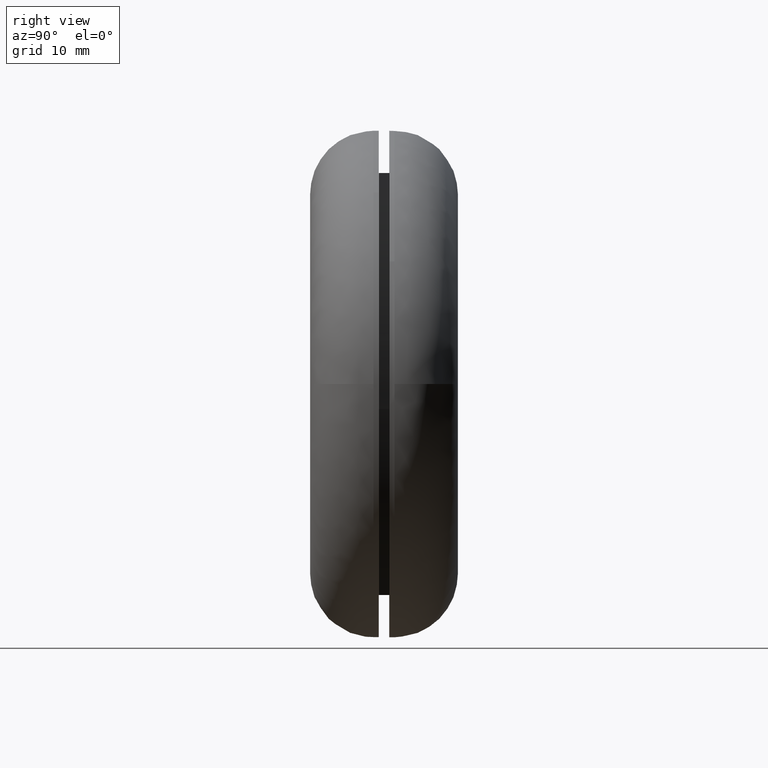
[diagram: clean part render]
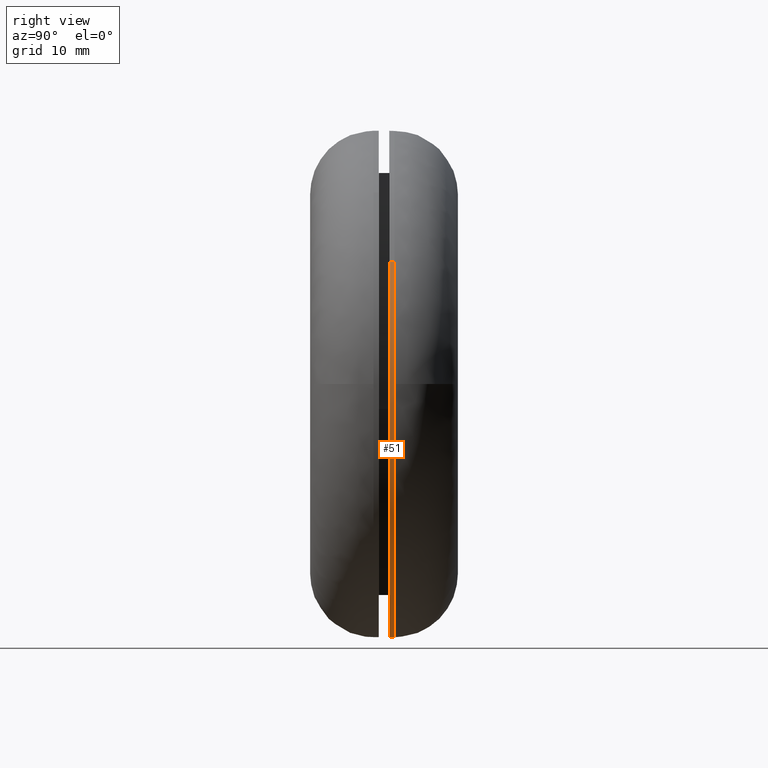
[diagram: same view with one face highlighted and labeled with its STEP entity id]
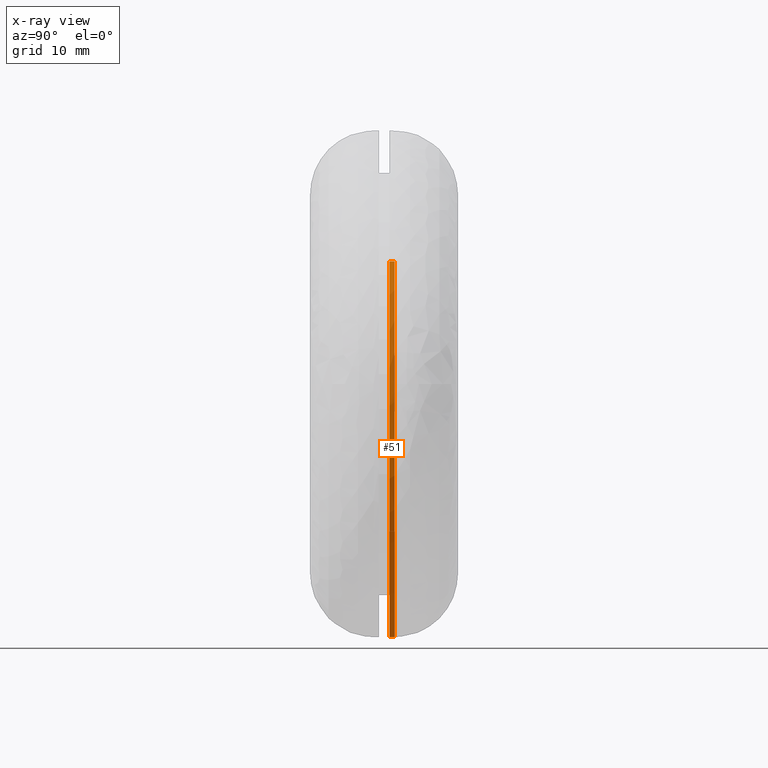
[diagram: x-ray of the same camera — body ghosted, the highlighted face saturated]
A machine part, right view. The second image highlights one B-rep face of the part: STEP entity #51.
The next image is the same camera in x-ray: the body ghosted, the highlighted face saturated — about 0% of this face is hidden behind the body in this view.
In plain terms, the highlighted cylindrical surface (partial cylindrical patch) has radius 24 mm, axis along (-0, 1, 0).
Its self-contained STEP definition (entity closure, byte-faithful):
#51=ADVANCED_FACE('',(#171),#170,.T.);
#170=CYLINDRICAL_SURFACE('',#282,2.40000000000E+001);
#171=FACE_OUTER_BOUND('',#283,.T.);
#279=CARTESIAN_POINT('',(5.76352026975E-015,8.01250000006E+000,7.18306713296E-015));
#280=DIRECTION('',(-3.66999007292E-017,1.00000000000E+000,2.95594623595E-016));
#281=DIRECTION('',(-8.74946427443E-001,1.11022302463E-016,-4.84219732254E-001));
#282=AXIS2_PLACEMENT_3D('',#279,#280,#281);
#283=EDGE_LOOP('',(#452,#453,#454,#455,#456,#457,#458,#459));
#452=ORIENTED_EDGE('',*,*,#494,.F.);
#453=ORIENTED_EDGE('',*,*,#496,.F.);
#454=ORIENTED_EDGE('',*,*,#528,.T.);
#455=ORIENTED_EDGE('',*,*,#530,.T.);
#456=ORIENTED_EDGE('',*,*,#531,.T.);
#457=ORIENTED_EDGE('',*,*,#532,.T.);
#458=ORIENTED_EDGE('',*,*,#533,.T.);
#459=ORIENTED_EDGE('',*,*,#529,.F.);
#494=EDGE_CURVE('',#580,#581,#582,.T.);
#496=EDGE_CURVE('',#588,#580,#595,.T.);
#528=EDGE_CURVE('',#588,#806,#813,.T.);
#529=EDGE_CURVE('',#581,#791,#819,.T.);
#530=EDGE_CURVE('',#806,#825,#826,.T.);
#531=EDGE_CURVE('',#825,#832,#833,.T.);
#532=EDGE_CURVE('',#832,#839,#840,.T.);
#533=EDGE_CURVE('',#839,#791,#846,.T.);
#580=VERTEX_POINT('',#906);
#581=VERTEX_POINT('',#907);
#582=CIRCLE('',#911,2.40000000000E+001);
#588=VERTEX_POINT('',#912);
#595=CIRCLE('',#920,2.40000000000E+001);
#791=VERTEX_POINT('',#1043);
#806=VERTEX_POINT('',#1054);
#813=(BOUNDED_CURVE() B_SPLINE_CURVE(1,(#1059,#1060),.UNSPECIFIED.,.F.,.F.) B_SPLINE_CURVE_WITH_KNOTS((2,2),(8.33332538610E-002,9.16666666064E-001),.UNSPECIFIED.) CURVE() GEOMETRIC_REPRESENTATION_ITEM() RATIONAL_B_SPLINE_CURVE((1.00000000000E+000,1.00000000000E+000)) REPRESENTATION_ITEM('') );
#819=(BOUNDED_CURVE() B_SPLINE_CURVE(1,(#1061,#1062),.UNSPECIFIED.,.F.,.F.) B_SPLINE_CURVE_WITH_KNOTS((2,2),(8.33333333334E-002,9.16666665096E-001),.UNSPECIFIED.) CURVE() GEOMETRIC_REPRESENTATION_ITEM() RATIONAL_B_SPLINE_CURVE((7.50000000000E-001,7.50000000000E-001)) REPRESENTATION_ITEM('') );
#825=VERTEX_POINT('',#1063);
#826=CIRCLE('',#1067,2.40000000000E+001);
#832=VERTEX_POINT('',#1068);
#833=CIRCLE('',#1072,2.40000000000E+001);
#839=VERTEX_POINT('',#1073);
#840=CIRCLE('',#1077,2.40000000000E+001);
#846=CIRCLE('',#1081,2.40000000000E+001);
#906=CARTESIAN_POINT('',(-1.00444826068E-014,7.50000000000E+000,-2.40000000000E+001));
#907=CARTESIAN_POINT('',(2.09980330301E+001,7.50000000000E+000,1.16225044146E+001));
#908=CARTESIAN_POINT('',(-3.55271367880E-015,7.50000000000E+000,-7.10542735760E-015));
#909=DIRECTION('',(0.00000000000E+000,-1.00000000000E+000,-5.18104078158E-016));
#910=DIRECTION('',(-1.48029736617E-016,5.18104078158E-016,-1.00000000000E+000));
#911=AXIS2_PLACEMENT_3D('',#908,#909,#910);
#912=CARTESIAN_POINT('',(-2.09987129202E+001,7.50000000000E+000,-1.16212759925E+001));
#917=CARTESIAN_POINT('',(-3.55271367880E-015,7.50000000000E+000,-7.10542735760E-015));
#918=DIRECTION('',(0.00000000000E+000,-1.00000000000E+000,-5.18104078158E-016));
#919=DIRECTION('',(-1.48029736617E-016,5.18104078158E-016,-1.00000000000E+000));
#920=AXIS2_PLACEMENT_3D('',#917,#918,#919);
#1043=CARTESIAN_POINT('',(2.09987164077E+001,8.00000000000E+000,1.16212696909E+001));
#1054=CARTESIAN_POINT('',(-2.09987142586E+001,7.99999999559E+000,-1.16212735741E+001));
#1059=CARTESIAN_POINT('',(-2.09987142586E+001,7.49999995232E+000,-1.16212735741E+001));
#1060=CARTESIAN_POINT('',(-2.09987142586E+001,7.99999999970E+000,-1.16212735741E+001));
#1061=CARTESIAN_POINT('',(2.09987142586E+001,7.50000000000E+000,1.16212735741E+001));
#1062=CARTESIAN_POINT('',(2.09987142586E+001,7.99999999911E+000,1.16212735741E+001));
#1063=CARTESIAN_POINT('',(0.00000000000E+000,8.00000000000E+000,-2.40000000000E+001));
#1064=CARTESIAN_POINT('',(-1.42108547152E-014,8.00000000010E+000,-1.95399252334E-014));
#1065=DIRECTION('',(6.33902254529E-012,-1.00000000000E+000,3.75954382491E-010));
#1066=DIRECTION('',(9.99921044204E-001,1.61426427780E-012,-1.25660398839E-002));
#1067=AXIS2_PLACEMENT_3D('',#1064,#1065,#1066);
#1068=CARTESIAN_POINT('',(2.39415761722E+001,8.00000000006E+000,-1.67359803781E+000));
#1069=CARTESIAN_POINT('',(-2.04813943583E-012,8.00000000006E+000,2.19380069666E-012));
#1070=DIRECTION('',(-2.66198800683E-028,-1.00000000000E+000,2.54315087507E-012));
#1071=DIRECTION('',(-8.53391431595E-014,2.54315087507E-012,1.00000000000E+000));
#1072=AXIS2_PLACEMENT_3D('',#1069,#1070,#1071);
#1073=CARTESIAN_POINT('',(2.40000000000E+001,7.99999999994E+000,4.86240192832E-006));
#1074=CARTESIAN_POINT('',(3.24718030242E-012,8.00000000072E+000,-1.59872115546E-014));
#1075=DIRECTION('',(-3.24176141859E-011,-1.00000000000E+000,-6.56673915600E-011));
#1076=DIRECTION('',(-9.97565673840E-001,2.77594984037E-011,6.97332515756E-002));
#1077=AXIS2_PLACEMENT_3D('',#1074,#1075,#1076);
#1078=CARTESIAN_POINT('',(3.24718030242E-012,8.00000000072E+000,-1.59872115546E-014));
#1079=DIRECTION('',(-3.24176141859E-011,-1.00000000000E+000,-6.56673915600E-011));
#1080=DIRECTION('',(-9.97565673840E-001,2.77594984037E-011,6.97332515756E-002));
#1081=AXIS2_PLACEMENT_3D('',#1078,#1079,#1080);